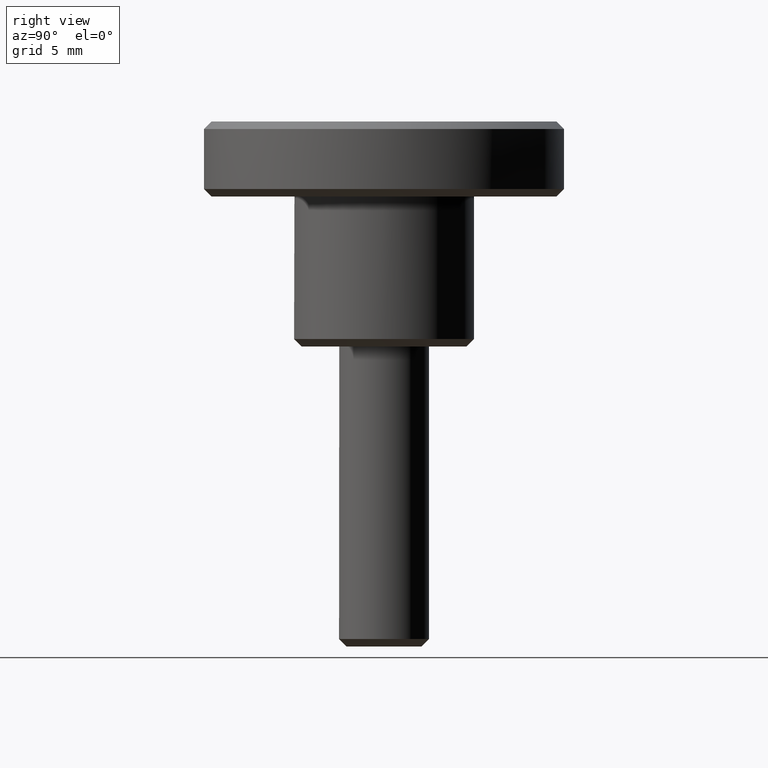
[diagram: clean part render]
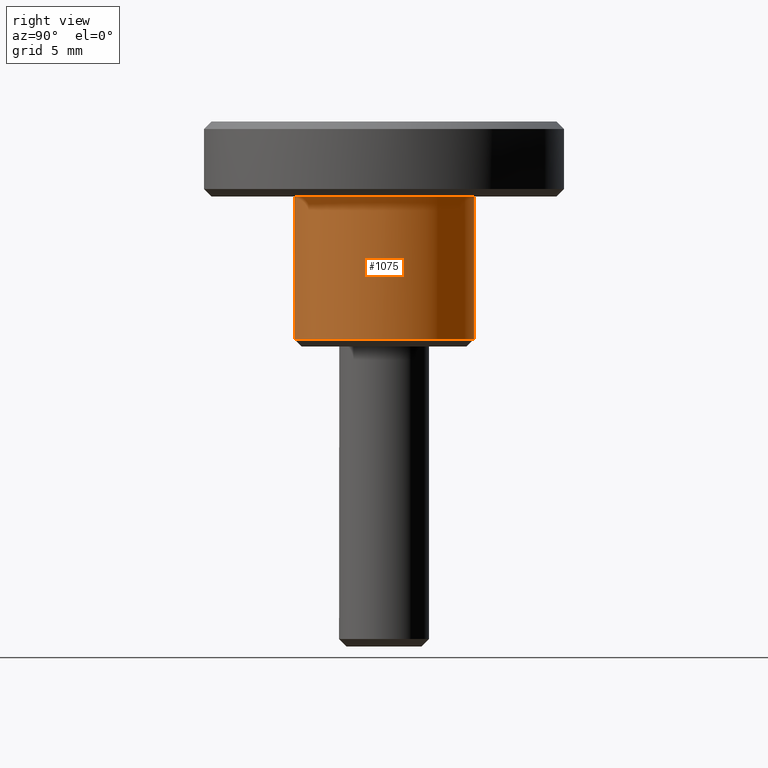
[diagram: same view with one face highlighted and labeled with its STEP entity id]
A machine part, right view. The second image highlights one B-rep face of the part: STEP entity #1075.
In plain terms, the highlighted face is a freeform B-spline surface patch.
Its self-contained STEP definition (entity closure, byte-faithful):
#701=CARTESIAN_POINT('',(0.744762001883350,-5.953598034845316,0.499999999999997));
#702=VERTEX_POINT('',#701);
#759=CARTESIAN_POINT('',(-0.052358838030565,5.999771541657181,0.499999999999923));
#760=VERTEX_POINT('',#759);
#766=CARTESIAN_POINT('',(6.0,0.0,0.499999999999945));
#767=VERTEX_POINT('',#766);
#768=CARTESIAN_POINT('',(6.0,0.0,0.499999999999945));
#769=CARTESIAN_POINT('',(6.0,6.0,0.499999999999945));
#770=CARTESIAN_POINT('',(0.0,6.0,0.499999999999945));
#771=CARTESIAN_POINT('',(-0.026179917433662,6.000000000000001,0.499999999999945));
#772=CARTESIAN_POINT('',(-0.052358838030565,5.999771541657181,0.499999999999923));
#780=(BOUNDED_CURVE()B_SPLINE_CURVE(2,(#768,#769,#770,#771,#772),.UNSPECIFIED.,.F.,.U.)B_SPLINE_CURVE_WITH_KNOTS((3,2,3),(0.500000000000000,0.750000000000000,0.751539883326828),.UNSPECIFIED.)CURVE()GEOMETRIC_REPRESENTATION_ITEM()RATIONAL_B_SPLINE_CURVE((1.0,0.707106781186548,1.0,0.998195914463233,0.996414053576372))REPRESENTATION_ITEM(''));
#781=EDGE_CURVE('',#767,#760,#780,.T.);
#783=CARTESIAN_POINT('',(0.744762001883350,-5.953598034845316,0.499999999999997));
#784=CARTESIAN_POINT('',(6.000000000000001,-5.296196989473239,0.499999999999945));
#785=CARTESIAN_POINT('',(6.0,0.0,0.499999999999945));
#793=(BOUNDED_CURVE()B_SPLINE_CURVE(2,(#783,#784,#785),.UNSPECIFIED.,.F.,.U.)B_SPLINE_CURVE_WITH_KNOTS((3,3),(0.271473758710190,0.500000000000000),.UNSPECIFIED.)CURVE()GEOMETRIC_REPRESENTATION_ITEM()RATIONAL_B_SPLINE_CURVE((0.954005760684819,0.732264854421151,1.0))REPRESENTATION_ITEM(''));
#794=EDGE_CURVE('',#702,#767,#793,.T.);
#1005=CARTESIAN_POINT('',(0.660702621348778,-5.964113482033336,0.262499999999943));
#1006=CARTESIAN_POINT('',(0.702631810616220,-5.958868330661579,0.262499999999943));
#1007=CARTESIAN_POINT('',(6.046396983014668,-5.290387548799326,0.262499999999943));
#1008=CARTESIAN_POINT('',(5.999771538385026,0.052359212990243,0.262499999999943));
#1009=CARTESIAN_POINT('',(5.947412325394783,6.052130751375269,0.262499999999943));
#1010=CARTESIAN_POINT('',(-0.092972651705218,5.999417110274833,0.262499999999943));
#1011=CARTESIAN_POINT('',(-0.133358976833273,5.999064664154886,0.262499999999943));
#1012=CARTESIAN_POINT('',(0.660702621348778,-5.964113482033336,10.243437500000006));
#1013=CARTESIAN_POINT('',(0.702631810616220,-5.958868330661579,10.243437500000006));
#1014=CARTESIAN_POINT('',(6.046396983014668,-5.290387548799326,10.243437500000004));
#1015=CARTESIAN_POINT('',(5.999771538385026,0.052359212990243,10.243437500000001));
#1016=CARTESIAN_POINT('',(5.947412325394783,6.052130751375269,10.243437500000004));
#1017=CARTESIAN_POINT('',(-0.092972651705218,5.999417110274833,10.243437500000008));
#1018=CARTESIAN_POINT('',(-0.133358976833273,5.999064664154886,10.243437500000004));
#1026=(BOUNDED_SURFACE()B_SPLINE_SURFACE(2,1,((#1005,#1012),(#1006,#1013),(#1007,#1014),(#1008,#1015),(#1009,#1016),(#1010,#1017),(#1011,#1018)),.UNSPECIFIED.,.F.,.F.,.U.)B_SPLINE_SURFACE_WITH_KNOTS((3,1,2,1,3),(2,2),(0.0,0.095445952662335,9.241281409860271,19.182406906814549,19.277841323429950),(0.0,9.980937500000064),.UNSPECIFIED.)GEOMETRIC_REPRESENTATION_ITEM()RATIONAL_B_SPLINE_SURFACE(((0.961610451816164,0.961610451816164),(0.959248285003412,0.959248285003412),(0.730538238691624,0.730538238691624),(1.0,1.0),(0.707106781186548,0.707106781186548),(1.002811763464472,1.002811763464472),(1.005623526928944,1.005623526928944)))REPRESENTATION_ITEM('')SURFACE());
#1027=ORIENTED_EDGE('',*,*,#794,.T.);
#1028=ORIENTED_EDGE('',*,*,#781,.T.);
#1029=CARTESIAN_POINT('',(-0.052357524053603,5.999771553123678,10.0));
#1030=VERTEX_POINT('',#1029);
#1031=CARTESIAN_POINT('',(-0.052358838030565,5.999771541657181,0.499999999999923));
#1032=CARTESIAN_POINT('',(-0.052357524053603,5.999771553123678,10.0));
#1033=QUASI_UNIFORM_CURVE('',1,(#1031,#1032),.UNSPECIFIED.,.F.,.U.);
#1034=EDGE_CURVE('',#760,#1030,#1033,.T.);
#1035=ORIENTED_EDGE('',*,*,#1034,.T.);
#1036=CARTESIAN_POINT('',(6.0,0.0,10.0));
#1037=VERTEX_POINT('',#1036);
#1038=CARTESIAN_POINT('',(-0.052357524053603,5.999771553123678,10.000000000000004));
#1039=CARTESIAN_POINT('',(-0.026179260407658,6.000000000000001,10.0));
#1040=CARTESIAN_POINT('',(0.0,6.0,10.0));
#1041=CARTESIAN_POINT('',(6.0,6.0,10.000000000000002));
#1042=CARTESIAN_POINT('',(6.0,0.0,10.0));
#1050=(BOUNDED_CURVE()B_SPLINE_CURVE(2,(#1038,#1039,#1040,#1041,#1042),.UNSPECIFIED.,.F.,.U.)B_SPLINE_CURVE_WITH_KNOTS((3,2,3),(0.248460155249236,0.250000000000000,0.500000000000000),.UNSPECIFIED.)CURVE()GEOMETRIC_REPRESENTATION_ITEM()RATIONAL_B_SPLINE_CURVE((0.996414142852213,0.998195959657903,1.0,0.707106781186548,1.0))REPRESENTATION_ITEM(''));
#1051=EDGE_CURVE('',#1030,#1037,#1050,.T.);
#1052=ORIENTED_EDGE('',*,*,#1051,.T.);
#1053=CARTESIAN_POINT('',(0.744758190612340,-5.953598511607736,10.0));
#1054=VERTEX_POINT('',#1053);
#1055=CARTESIAN_POINT('',(6.0,0.0,10.0));
#1056=CARTESIAN_POINT('',(6.0,-5.296200406325699,9.999999999999998));
#1057=CARTESIAN_POINT('',(0.744758190612340,-5.953598511607736,10.000000000000002));
#1065=(BOUNDED_CURVE()B_SPLINE_CURVE(2,(#1055,#1056,#1057),.UNSPECIFIED.,.F.,.U.)B_SPLINE_CURVE_WITH_KNOTS((3,3),(0.500000000000000,0.728526349250659),.UNSPECIFIED.)CURVE()GEOMETRIC_REPRESENTATION_ITEM()RATIONAL_B_SPLINE_CURVE((1.0,0.732264727937149,0.954005970195540))REPRESENTATION_ITEM(''));
#1066=EDGE_CURVE('',#1037,#1054,#1065,.T.);
#1067=ORIENTED_EDGE('',*,*,#1066,.T.);
#1068=CARTESIAN_POINT('',(0.744762001883350,-5.953598034845316,0.499999999999997));
#1069=CARTESIAN_POINT('',(0.744758190612340,-5.953598511607736,10.0));
#1070=QUASI_UNIFORM_CURVE('',1,(#1068,#1069),.UNSPECIFIED.,.F.,.U.);
#1071=EDGE_CURVE('',#702,#1054,#1070,.T.);
#1072=ORIENTED_EDGE('',*,*,#1071,.F.);
#1073=EDGE_LOOP('',(#1027,#1028,#1035,#1052,#1067,#1072));
#1074=FACE_OUTER_BOUND('',#1073,.T.);
#1075=ADVANCED_FACE('',(#1074),#1026,.T.);